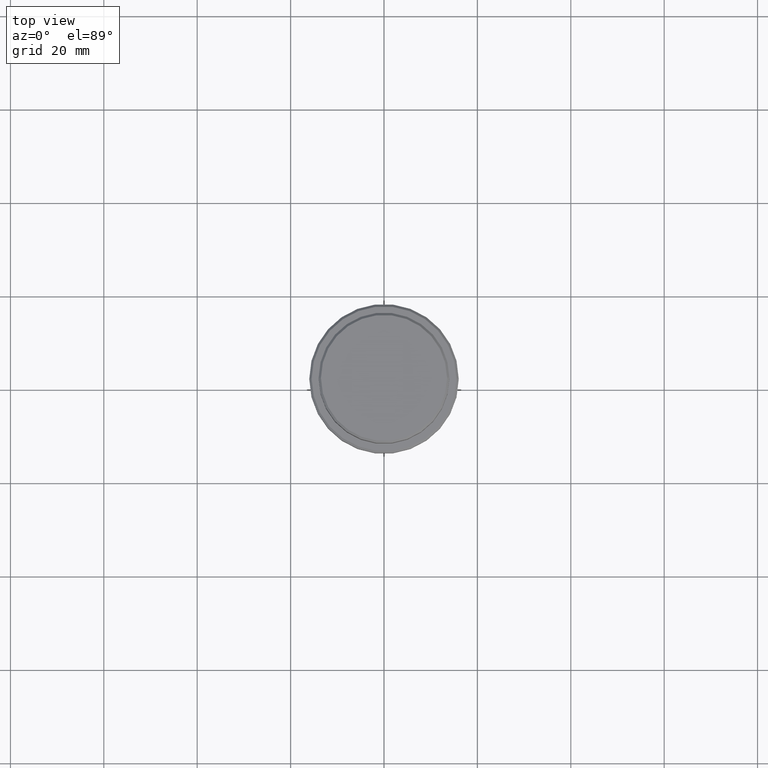
[diagram: clean part render]
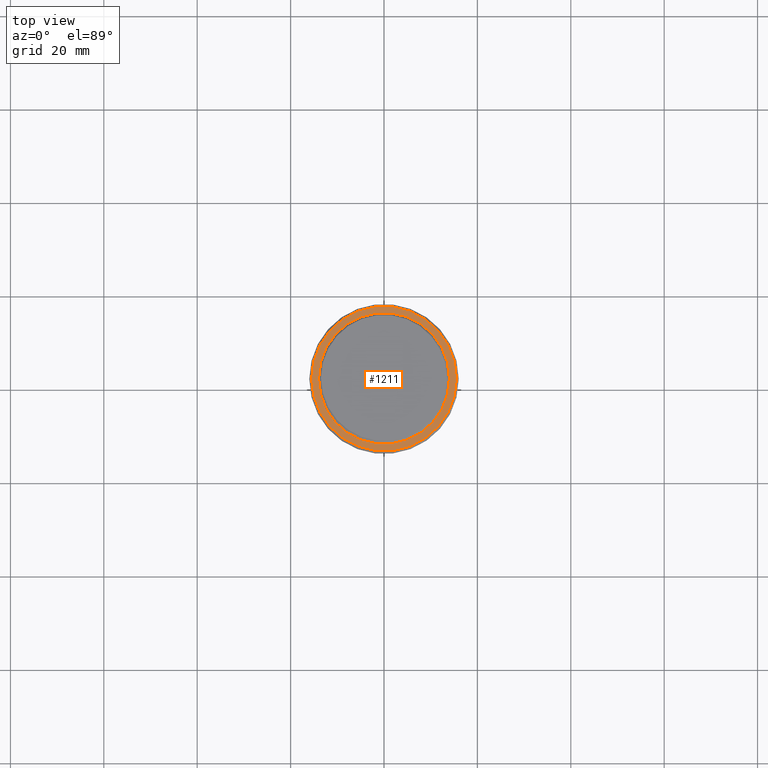
[diagram: same view with one face highlighted and labeled with its STEP entity id]
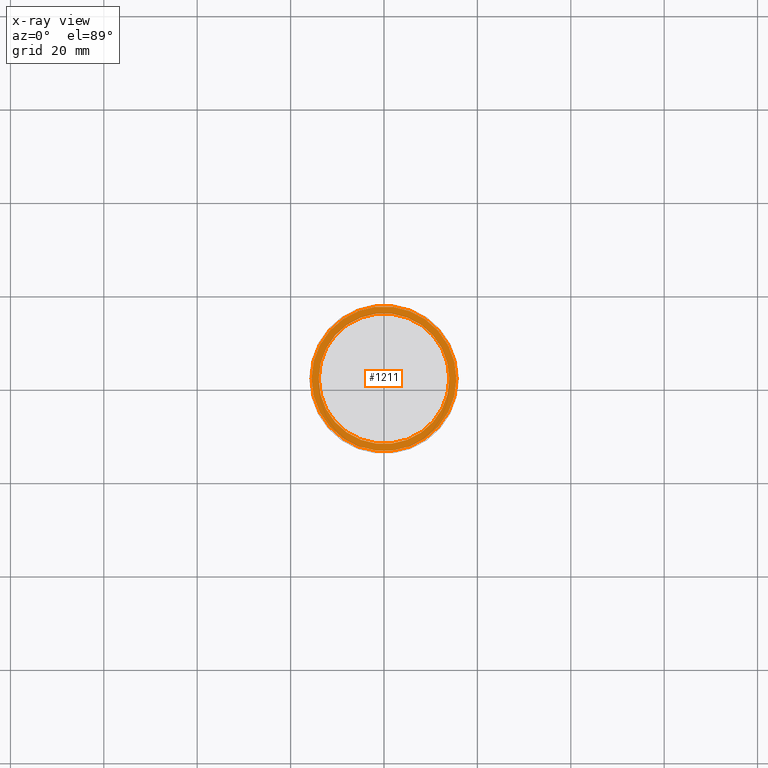
[diagram: x-ray of the same camera — body ghosted, the highlighted face saturated]
A machine part, top view. The second image highlights one B-rep face of the part: STEP entity #1211.
The next image is the same camera in x-ray: the body ghosted, the highlighted face saturated — about 0% of this face is hidden behind the body in this view.
In plain terms, the highlighted planar face has unit normal (0, -0, 1).
Its self-contained STEP definition (entity closure, byte-faithful):
#20 = DIRECTION ( 'NONE',  ( 1.000000000000000000, 0.000000000000000000, 0.000000000000000000 ) ) ;
#23 = AXIS2_PLACEMENT_3D ( 'NONE', #884, #1311, #778 ) ;
#43 = CARTESIAN_POINT ( 'NONE',  ( -15.50000000000000000, 0.000000000000000000, -9.999999999999998224 ) ) ;
#110 = EDGE_LOOP ( 'NONE', ( #622, #667 ) ) ;
#142 = DIRECTION ( 'NONE',  ( 0.000000000000000000, 0.000000000000000000, -1.000000000000000000 ) ) ;
#213 = EDGE_CURVE ( 'NONE', #356, #767, #588, .T. ) ;
#220 = DIRECTION ( 'NONE',  ( 1.000000000000000000, 0.000000000000000000, 0.000000000000000000 ) ) ;
#251 = AXIS2_PLACEMENT_3D ( 'NONE', #899, #142, #355 ) ;
#263 = DIRECTION ( 'NONE',  ( 0.000000000000000000, 0.000000000000000000, -1.000000000000000000 ) ) ;
#338 = EDGE_CURVE ( 'NONE', #636, #382, #1320, .T. ) ;
#355 = DIRECTION ( 'NONE',  ( 1.000000000000000000, 0.000000000000000000, 0.000000000000000000 ) ) ;
#356 = VERTEX_POINT ( 'NONE', #43 ) ;
#357 = CIRCLE ( 'NONE', #1006, 13.99999999999997868 ) ;
#369 = CARTESIAN_POINT ( 'NONE',  ( 15.50000000000000000, 1.928818708657080556E-15, -9.999999999999998224 ) ) ;
#382 = VERTEX_POINT ( 'NONE', #1038 ) ;
#443 = DIRECTION ( 'NONE',  ( 0.000000000000000000, -0.000000000000000000, 1.000000000000000000 ) ) ;
#472 = EDGE_CURVE ( 'NONE', #767, #356, #641, .T. ) ;
#475 = AXIS2_PLACEMENT_3D ( 'NONE', #862, #443, #220 ) ;
#497 = EDGE_LOOP ( 'NONE', ( #1149, #729 ) ) ;
#557 = FACE_OUTER_BOUND ( 'NONE', #110, .T. ) ;
#588 = CIRCLE ( 'NONE', #782, 15.50000000000000000 ) ;
#622 = ORIENTED_EDGE ( 'NONE', *, *, #213, .T. ) ;
#636 = VERTEX_POINT ( 'NONE', #758 ) ;
#641 = CIRCLE ( 'NONE', #23, 15.50000000000000000 ) ;
#667 = ORIENTED_EDGE ( 'NONE', *, *, #472, .T. ) ;
#729 = ORIENTED_EDGE ( 'NONE', *, *, #908, .T. ) ;
#758 = CARTESIAN_POINT ( 'NONE',  ( 13.99999999999997868, 0.000000000000000000, -9.999999999999998224 ) ) ;
#767 = VERTEX_POINT ( 'NONE', #369 ) ;
#778 = DIRECTION ( 'NONE',  ( 1.000000000000000000, 0.000000000000000000, 0.000000000000000000 ) ) ;
#782 = AXIS2_PLACEMENT_3D ( 'NONE', #787, #1205, #20 ) ;
#787 = CARTESIAN_POINT ( 'NONE',  ( 0.000000000000000000, 0.000000000000000000, -9.999999999999998224 ) ) ;
#862 = CARTESIAN_POINT ( 'NONE',  ( 0.000000000000000000, 13.49999999999997868, -9.999999999999998224 ) ) ;
#884 = CARTESIAN_POINT ( 'NONE',  ( 0.000000000000000000, 0.000000000000000000, -9.999999999999998224 ) ) ;
#899 = CARTESIAN_POINT ( 'NONE',  ( 0.000000000000000000, 0.000000000000000000, -9.999999999999998224 ) ) ;
#908 = EDGE_CURVE ( 'NONE', #382, #636, #357, .T. ) ;
#965 = PLANE ( 'NONE',  #475 ) ;
#1006 = AXIS2_PLACEMENT_3D ( 'NONE', #1234, #263, #1127 ) ;
#1038 = CARTESIAN_POINT ( 'NONE',  ( -13.99999999999997868, 1.714505518806292074E-15, -9.999999999999998224 ) ) ;
#1085 = FACE_BOUND ( 'NONE', #497, .T. ) ;
#1127 = DIRECTION ( 'NONE',  ( 1.000000000000000000, 0.000000000000000000, 0.000000000000000000 ) ) ;
#1149 = ORIENTED_EDGE ( 'NONE', *, *, #338, .T. ) ;
#1205 = DIRECTION ( 'NONE',  ( -0.000000000000000000, -0.000000000000000000, 1.000000000000000000 ) ) ;
#1211 = ADVANCED_FACE ( 'NONE', ( #557, #1085 ), #965, .T. ) ;
#1234 = CARTESIAN_POINT ( 'NONE',  ( 0.000000000000000000, 0.000000000000000000, -9.999999999999998224 ) ) ;
#1311 = DIRECTION ( 'NONE',  ( -0.000000000000000000, -0.000000000000000000, 1.000000000000000000 ) ) ;
#1320 = CIRCLE ( 'NONE', #251, 13.99999999999997868 ) ;